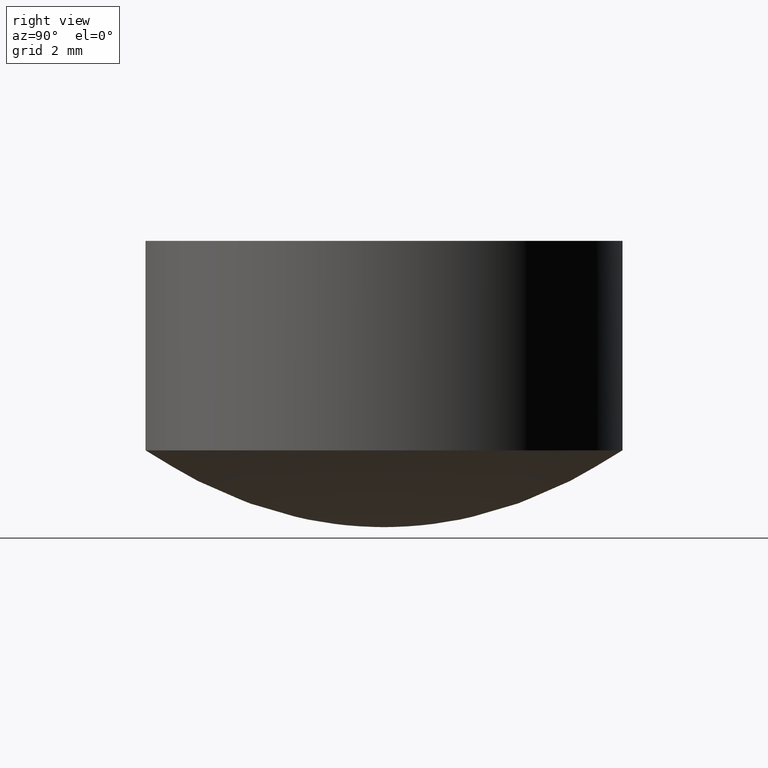
[diagram: clean part render]
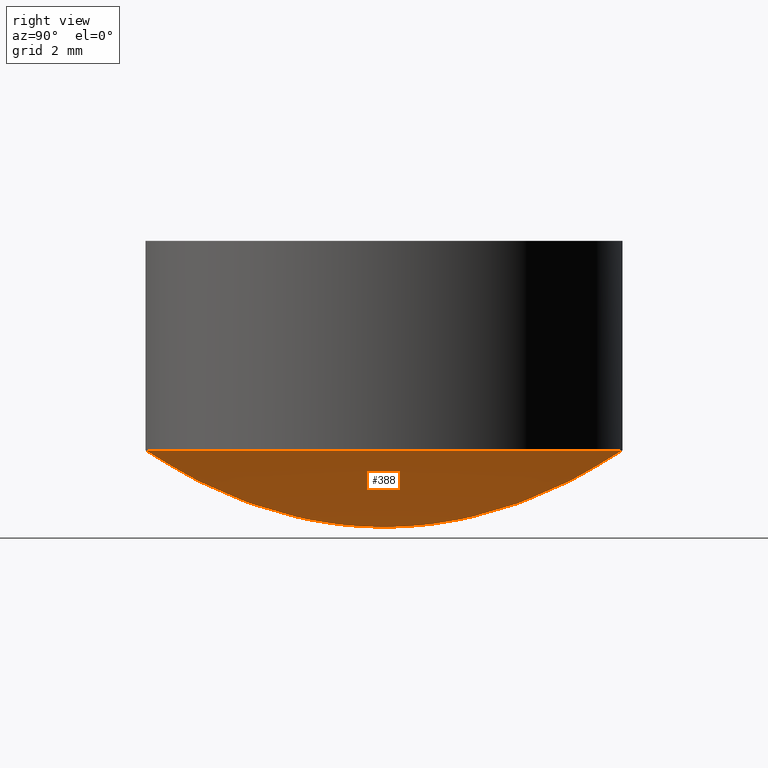
[diagram: same view with one face highlighted and labeled with its STEP entity id]
A machine part, right view. The second image highlights one B-rep face of the part: STEP entity #388.
In plain terms, the highlighted face is a freeform B-spline surface patch.
Its self-contained STEP definition (entity closure, byte-faithful):
#2 = CARTESIAN_POINT ( 'NONE',  ( 4.943235777808334573E-16, 2.018229166666670071, 0.2029295990211220091 ) ) ;
#3 = CARTESIAN_POINT ( 'NONE',  ( 0.000000000000000000, 5.403645833333329485, 1.490662127284529959 ) ) ;
#6 = CARTESIAN_POINT ( 'NONE',  ( -7.972960931948918898E-17, -0.6510416666666670737, 0.02085353383561979954 ) ) ;
#9 = CARTESIAN_POINT ( 'NONE',  ( 7.494583276031971660E-16, 3.059895833333330373, 0.4691095578617149875 ) ) ;
#10 = CARTESIAN_POINT ( 'NONE',  ( 0.000000000000000000, 5.533854166666669627, 1.565382453900790116 ) ) ;
#15 = CARTESIAN_POINT ( 'NONE',  ( 4.036458333333339255, -2.018229166666670071, 0.2029295990211220091 ) ) ;
#16 = CARTESIAN_POINT ( 'NONE',  ( 0.000000000000000000, 5.338541666666670515, 1.454036125696430037 ) ) ;
#19 = CARTESIAN_POINT ( 'NONE',  ( 5.989583333333338366, 2.994791666666669183, 0.4491825398135370628 ) ) ;
#20 = CARTESIAN_POINT ( 'NONE',  ( 0.000000000000000000, 4.427083333333329485, 0.9917192555910387952 ) ) ;
#23 = CARTESIAN_POINT ( 'NONE',  ( 4.557291666666658969, -2.278645833333330373, 0.2590134107874019764 ) ) ;
#24 = CARTESIAN_POINT ( 'NONE',  ( 0.000000000000000000, 1.041666666666670071, 0.05374797635312900113 ) ) ;
#26 = CARTESIAN_POINT ( 'NONE',  ( 11.84895833333333748, 5.924479166666667851, 1.801366859548939825 ) ) ;
#28 = CARTESIAN_POINT ( 'NONE',  ( 3.667562028696491871E-16, 1.497395833333329929, 0.1114140896328100067 ) ) ;
#29 = CARTESIAN_POINT ( 'NONE',  ( 0.000000000000000000, 0.06510416666666669905, 0.000000000000000000 ) ) ;
#34 = CARTESIAN_POINT ( 'NONE',  ( 1.211890061656235604E-15, 4.947916666666669627, 1.244444089591119962 ) ) ;
#38 = CARTESIAN_POINT ( 'NONE',  ( 9.505208333333337478, -4.752604166666670515, 1.146123052034490053 ) ) ;
#40 = CARTESIAN_POINT ( 'NONE',  ( 0.000000000000000000, 1.432291666666670071, 0.1019000922679149934 ) ) ;
#42 = CARTESIAN_POINT ( 'NONE',  ( -6.298639136239646090E-16, -5.143229166666670515, 1.347069312123280183 ) ) ;
#44 = CARTESIAN_POINT ( 'NONE',  ( -7.972960931948918898E-17, -0.6510416666666670737, 0.02085353383561979954 ) ) ;
#51 = CARTESIAN_POINT ( 'NONE',  ( -2.710806716862634373E-16, -2.213541666666669627, 0.2443439133051079626 ) ) ;
#57 = CARTESIAN_POINT ( 'NONE',  ( -1.514862577070297956E-16, -1.236979166666670071, 0.07591213951704720020 ) ) ;
#60 = EDGE_CURVE ( 'NONE', #142, #633, #707, .T. ) ;
#65 = CARTESIAN_POINT ( 'NONE',  ( 8.451338587865840991E-16, 3.450520833333330373, 0.5980296746302240507 ) ) ;
#66 = CARTESIAN_POINT ( 'NONE',  ( 12.23958333333333925, 6.119791666666668739, 1.926081686685339855 ) ) ;
#69 = CARTESIAN_POINT ( 'NONE',  ( -6.617557573517594316E-16, -5.403645833333329485, 1.490662127284529959 ) ) ;
#70 = CARTESIAN_POINT ( 'NONE',  ( 9.408093899699709336E-16, 3.841145833333329929, 0.7431461482547900843 ) ) ;
#72 = CARTESIAN_POINT ( 'NONE',  ( -3.747291638015985830E-16, -3.059895833333330373, 0.4691095578617149875 ) ) ;
#73 = CARTESIAN_POINT ( 'NONE',  ( 7.942708333333338366, -3.971354166666671404, 0.7951591232710990553 ) ) ;
#76 = CARTESIAN_POINT ( 'NONE',  ( 6.770833333333338366, 3.385416666666667851, 0.5754250918116350366 ) ) ;
#78 = CARTESIAN_POINT ( 'NONE',  ( 3.189184372779558068E-17, 0.1302083333333330095, 0.0006316536323980819585 ) ) ;
#85 = CARTESIAN_POINT ( 'NONE',  ( 2.232429060945694777E-16, 0.9114583333333330373, 0.04109109837064860160 ) ) ;
#88 = CARTESIAN_POINT ( 'NONE',  ( 3.645833333333338810, -1.822916666666670737, 0.1653948692137860166 ) ) ;
#89 = CARTESIAN_POINT ( 'NONE',  ( 0.000000000000000000, 2.994791666666670071, 0.4491825398135370073 ) ) ;
#93 = CARTESIAN_POINT ( 'NONE',  ( -7.574312885351464633E-16, -6.184895833333330373, 1.968657738656729883 ) ) ;
#94 = CARTESIAN_POINT ( 'NONE',  ( 1.302083333333334147, 0.6510416666666667407, 0.02085353383561979607 ) ) ;
#95 = CARTESIAN_POINT ( 'NONE',  ( 0.000000000000000000, 5.989583333333330373, 1.842436248617159933 ) ) ;
#97 = CARTESIAN_POINT ( 'NONE',  ( 1.822916666666666075, 0.9114583333333327042, 0.04109109837064859466 ) ) ;
#98 = CARTESIAN_POINT ( 'NONE',  ( -7.255394448073515421E-16, -5.924479166666669627, 1.801366859548940047 ) ) ;
#100 = CARTESIAN_POINT ( 'NONE',  ( -2.790536326182116006E-16, -2.278645833333329929, 0.2590134107874019764 ) ) ;
#101 = CARTESIAN_POINT ( 'NONE',  ( 0.000000000000000000, 4.752604166666669627, 1.146123052034490053 ) ) ;
#105 = CARTESIAN_POINT ( 'NONE',  ( 10.67708333333334103, 5.338541666666667851, 1.454036125696430037 ) ) ;
#107 = CARTESIAN_POINT ( 'NONE',  ( -3.508102810057518251E-16, -2.864583333333329929, 0.4106543168688750467 ) ) ;
#110 = CARTESIAN_POINT ( 'NONE',  ( 1.692708333333333703, -0.8463541666666671848, 0.03539781309837600198 ) ) ;
#112 = EDGE_LOOP ( 'NONE', ( #981, #201, #1059 ) ) ;
#115 = CARTESIAN_POINT ( 'NONE',  ( 1.323511514703518863E-15, 5.403645833333329485, 1.490662127284529959 ) ) ;
#119 = CARTESIAN_POINT ( 'NONE',  ( 1.179998217928438414E-15, 4.817708333333330373, 1.178419867277990196 ) ) ;
#122 = CARTESIAN_POINT ( 'NONE',  ( 0.000000000000000000, 0.9114583333333330373, 0.04109109837064860160 ) ) ;
#124 = CARTESIAN_POINT ( 'NONE',  ( 1.227835983520132029E-15, 5.013020833333330373, 1.278171498255870064 ) ) ;
#126 = CARTESIAN_POINT ( 'NONE',  ( -1.355403358431311023E-16, -1.106770833333329929, 0.06071156909582089978 ) ) ;
#127 = DIRECTION ( 'NONE',  ( 0.000000000000000000, 0.000000000000000000, 1.000000000000000000 ) ) ;
#128 = CARTESIAN_POINT ( 'NONE',  ( -6.378368745559128216E-16, -5.208333333333330373, 1.382239719112129839 ) ) ;
#134 = CARTESIAN_POINT ( 'NONE',  ( -1.355403358431311023E-16, -1.106770833333329929, 0.06071156909582089978 ) ) ;
#137 = CARTESIAN_POINT ( 'NONE',  ( -8.770257025143801790E-17, -0.7161458333333329263, 0.02527903084214990284 ) ) ;
#138 = CARTESIAN_POINT ( 'NONE',  ( -6.856746401476061403E-16, -5.598958333333329485, 1.603476781141630170 ) ) ;
#142 = VERTEX_POINT ( 'NONE', #884 ) ;
#144 = CARTESIAN_POINT ( 'NONE',  ( 0.000000000000000000, 0.000000000000000000, 0.000000000000000000 ) ) ;
#145 = CARTESIAN_POINT ( 'NONE',  ( -4.943235777808322740E-16, -4.036458333333330373, 0.8218521257202150432 ) ) ;
#149 = CARTESIAN_POINT ( 'NONE',  ( 9.727012336977683201E-16, 3.971354166666670071, 0.7951591232710989443 ) ) ;
#151 = CARTESIAN_POINT ( 'NONE',  ( -3.508102810057518251E-16, -2.864583333333329929, 0.4106543168688750467 ) ) ;
#154 = CARTESIAN_POINT ( 'NONE',  ( 8.463541666666658969, -4.231770833333331261, 0.9046987737912409733 ) ) ;
#157 = CARTESIAN_POINT ( 'NONE',  ( -3.189184372779570394E-17, -0.2604166666666670182, 0.003158548302291759938 ) ) ;
#160 = CARTESIAN_POINT ( 'NONE',  ( 8.770257025143813870E-16, 3.580729166666670071, 0.6445915719321290149 ) ) ;
#161 = CARTESIAN_POINT ( 'NONE',  ( 0.000000000000000000, 4.231770833333330373, 0.9046987737912409733 ) ) ;
#165 = CARTESIAN_POINT ( 'NONE',  ( 8.854166666666657193, -4.427083333333330373, 0.9917192555910389062 ) ) ;
#166 = CARTESIAN_POINT ( 'NONE',  ( 0.000000000000000000, 3.776041666666669627, 0.7178261748412130272 ) ) ;
#169 = CARTESIAN_POINT ( 'NONE',  ( 1.467024811478599509E-15, 5.989583333333330373, 1.842436248617159933 ) ) ;
#175 = CARTESIAN_POINT ( 'NONE',  ( -2.232429060945700200E-16, -1.822916666666670071, 0.1653948692137860166 ) ) ;
#179 = CARTESIAN_POINT ( 'NONE',  ( 0.5208333333333339255, -0.2604166666666670737, 0.003158548302291759938 ) ) ;
#180 = CARTESIAN_POINT ( 'NONE',  ( 1.692708333333333703, 0.8463541666666665186, 0.03539781309837600198 ) ) ;
#182 = CARTESIAN_POINT ( 'NONE',  ( 0.9114583333333338144, 0.4557291666666667407, 0.01010869919915239820 ) ) ;
#183 = CARTESIAN_POINT ( 'NONE',  ( -3.029725154140583585E-16, -2.473958333333330373, 0.3056288482151509611 ) ) ;
#188 = CARTESIAN_POINT ( 'NONE',  ( 12.36979166666665897, 6.184895833333328596, 1.968657738656729883 ) ) ;
#189 = CARTESIAN_POINT ( 'NONE',  ( 7.813501713309942566E-16, 3.190104166666669627, 0.5102978868124029566 ) ) ;
#193 = CARTESIAN_POINT ( 'NONE',  ( 6.380208333333338366, 3.190104166666667851, 0.5102978868124029566 ) ) ;
#199 = CARTESIAN_POINT ( 'NONE',  ( 10.41666666666665897, -5.208333333333331261, 1.382239719112129839 ) ) ;
#201 = ORIENTED_EDGE ( 'NONE', *, *, #60, .T. ) ;
#202 = CARTESIAN_POINT ( 'NONE',  ( 5.421613433725268746E-16, 2.213541666666669627, 0.2443439133051079626 ) ) ;
#205 = CARTESIAN_POINT ( 'NONE',  ( 10.28645833333333748, -5.143229166666670515, 1.347069312123280183 ) ) ;
#207 = CARTESIAN_POINT ( 'NONE',  ( -3.986480465974453286E-17, -0.3255208333333330373, 0.005053789343999089134 ) ) ;
#209 = CARTESIAN_POINT ( 'NONE',  ( 10.80729166666665719, -5.403645833333331261, 1.490662127284529959 ) ) ;
#211 = CARTESIAN_POINT ( 'NONE',  ( 1.594592186389783780E-16, 0.6510416666666670737, 0.02085353383561979954 ) ) ;
#212 = CARTESIAN_POINT ( 'NONE',  ( 3.986480465974465242E-16, 1.627604166666670071, 0.1317232941412340153 ) ) ;
#215 = CARTESIAN_POINT ( 'NONE',  ( -6.856746401476061403E-16, -5.598958333333329485, 1.603476781141630170 ) ) ;
#218 = CARTESIAN_POINT ( 'NONE',  ( 4.145939684613427030E-16, 1.692708333333329929, 0.1425185013666920020 ) ) ;
#222 = CARTESIAN_POINT ( 'NONE',  ( -4.464858121891388568E-16, -3.645833333333330373, 0.6685488870468468958 ) ) ;
#223 = CARTESIAN_POINT ( 'NONE',  ( 3.029725154140595911E-16, 1.236979166666670071, 0.07591213951704720020 ) ) ;
#227 = CARTESIAN_POINT ( 'NONE',  ( -4.225669293932920496E-16, -3.450520833333330373, 0.5980296746302240507 ) ) ;
#231 = CARTESIAN_POINT ( 'NONE',  ( -1.993240232987232621E-16, -1.627604166666670071, 0.1317232941412340153 ) ) ;
#235 = CARTESIAN_POINT ( 'NONE',  ( -5.899991089642192072E-16, -4.817708333333330373, 1.178419867277990196 ) ) ;
#237 = CARTESIAN_POINT ( 'NONE',  ( 0.000000000000000000, 0.000000000000000000, 0.000000000000000000 ) ) ;
#238 = CARTESIAN_POINT ( 'NONE',  ( 7.552083333333336590, -3.776041666666670515, 0.7178261748412130272 ) ) ;
#242 = CARTESIAN_POINT ( 'NONE',  ( 6.901041666666659857, 3.450520833333328596, 0.5980296746302240507 ) ) ;
#245 = CARTESIAN_POINT ( 'NONE',  ( 1.036484921153358163E-15, 4.231770833333330373, 0.9046987737912409733 ) ) ;
#249 = CARTESIAN_POINT ( 'NONE',  ( 8.723958333333341031, 4.361979166666668739, 0.9622474257860160751 ) ) ;
#250 = CARTESIAN_POINT ( 'NONE',  ( 0.000000000000000000, 3.385416666666669627, 0.5754250918116350366 ) ) ;
#254 = CARTESIAN_POINT ( 'NONE',  ( -5.341883824405776759E-16, -4.361979166666670515, 0.9622474257860159641 ) ) ;
#255 = CARTESIAN_POINT ( 'NONE',  ( 0.000000000000000000, 5.924479166666669627, 1.801366859548940047 ) ) ;
#260 = CARTESIAN_POINT ( 'NONE',  ( 4.166666666666660745, 2.083333333333329485, 0.2163020075082220106 ) ) ;
#261 = CARTESIAN_POINT ( 'NONE',  ( 0.000000000000000000, 1.692708333333329929, 0.1425185013666920020 ) ) ;
#266 = CARTESIAN_POINT ( 'NONE',  ( -2.072969842306713515E-16, -1.692708333333329929, 0.1425185013666920020 ) ) ;
#267 = CARTESIAN_POINT ( 'NONE',  ( 0.000000000000000000, 2.278645833333329929, 0.2590134107874019764 ) ) ;
#270 = CARTESIAN_POINT ( 'NONE',  ( 12.49999999999999822, -6.250000000000002665, 2.011993405105169774 ) ) ;
#271 = CARTESIAN_POINT ( 'NONE',  ( 5.989583333333338366, -2.994791666666670515, 0.4491825398135370628 ) ) ;
#272 = CARTESIAN_POINT ( 'NONE',  ( 0.000000000000000000, 4.166666666666670515, 0.8766219504956098696 ) ) ;
#274 = CARTESIAN_POINT ( 'NONE',  ( 1.754051405028760358E-16, 0.7161458333333329263, 0.02527903084214990284 ) ) ;
#275 = CARTESIAN_POINT ( 'NONE',  ( 11.45833333333333748, -5.729166666666671404, 1.681146561684840002 ) ) ;
#277 = CARTESIAN_POINT ( 'NONE',  ( 6.119791666666658969, -3.059895833333331705, 0.4691095578617149875 ) ) ;
#280 = CARTESIAN_POINT ( 'NONE',  ( -6.777016792156581248E-16, -5.533854166666669627, 1.565382453900790116 ) ) ;
#282 = CARTESIAN_POINT ( 'NONE',  ( 4.817708333333339255, -2.408854166666670071, 0.2896558781350230261 ) ) ;
#286 = CARTESIAN_POINT ( 'NONE',  ( 10.41666666666666075, 5.208333333333327708, 1.382239719112129839 ) ) ;
#289 = CARTESIAN_POINT ( 'NONE',  ( 3.255208333333339699, 1.627604166666669183, 0.1317232941412339875 ) ) ;
#290 = CARTESIAN_POINT ( 'NONE',  ( 0.000000000000000000, 1.497395833333329929, 0.1114140896328100067 ) ) ;
#292 = CARTESIAN_POINT ( 'NONE',  ( 9.635416666666658969, 4.817708333333326820, 1.178419867277989974 ) ) ;
#294 = CARTESIAN_POINT ( 'NONE',  ( -1.993240232987232621E-16, -1.627604166666670071, 0.1317232941412340153 ) ) ;
#298 = CARTESIAN_POINT ( 'NONE',  ( 11.06770833333333925, 5.533854166666666963, 1.565382453900790116 ) ) ;
#303 = CARTESIAN_POINT ( 'NONE',  ( -4.624317340530374514E-16, -3.776041666666669627, 0.7178261748412130272 ) ) ;
#304 = CARTESIAN_POINT ( 'NONE',  ( 2.604166666666659857, 1.302083333333329263, 0.08414911724075491151 ) ) ;
#310 = CARTESIAN_POINT ( 'NONE',  ( -4.863506168488841600E-16, -3.971354166666670071, 0.7951591232710989443 ) ) ;
#311 = CARTESIAN_POINT ( 'NONE',  ( 2.994791666666658969, -1.497395833333330595, 0.1114140896328100067 ) ) ;
#318 = CARTESIAN_POINT ( 'NONE',  ( 7.682291666666658969, 3.841145833333328152, 0.7431461482547900843 ) ) ;
#321 = B_SPLINE_CURVE_WITH_KNOTS ( 'NONE', 3,
 ( #684, #760, #423, #95, #255, #1004, #925, #354, #10, #3, #16, #859, #1023, #931, #748, #346, #101, #672, #772, #20, #581, #161, #272, #365, #678, #519, #166, #848, #508, #998, #250, #514, #1010, #502, #89, #574, #1084, #338, #1017, #920, #840, #267, #833, #417, #430, #666, #754, #261, #586, #290, #40, #1032, #689, #380, #24, #122, #779, #701, #954, #1028, #783, #965, #536, #803, #29, #797 ),
 .UNSPECIFIED., .F., .F.,
 ( 4, 2, 2, 2, 2, 2, 2, 2, 2, 2, 2, 2, 2, 2, 2, 2, 2, 2, 2, 2, 2, 2, 2, 2, 2, 2, 2, 2, 2, 2, 2, 2, 4 ),
 ( -1.000000000000000000, -0.9687500000000000000, -0.9375000000000000000, -0.9062500000000000000, -0.8750000000000000000, -0.8437500000000000000, -0.8125000000000000000, -0.7812500000000000000, -0.7500000000000000000, -0.7187500000000000000, -0.6875000000000000000, -0.6562500000000000000, -0.6250000000000000000, -0.5937500000000000000, -0.5625000000000000000, -0.5312500000000000000, -0.5000000000000000000, -0.4687500000000000000, -0.4375000000000000000, -0.4062500000000000000, -0.3750000000000000000, -0.3437500000000000000, -0.3125000000000000000, -0.2812500000000000000, -0.2500000000000000000, -0.2187500000000000000, -0.1875000000000000000, -0.1562500000000000000, -0.1250000000000000000, -0.09375000000000000000, -0.06250000000000000000, -0.03125000000000000000, 0.000000000000000000 ),
 .UNSPECIFIED. ) ;
#325 = CARTESIAN_POINT ( 'NONE',  ( 9.244791666666658969, -4.622395833333331261, 1.082947853520390025 ) ) ;
#327 = CARTESIAN_POINT ( 'NONE',  ( -5.820261480322710931E-16, -4.752604166666669627, 1.146123052034490053 ) ) ;
#328 = CARTESIAN_POINT ( 'NONE',  ( 7.161458333333340143, 3.580729166666668739, 0.6445915719321291260 ) ) ;
#330 = CARTESIAN_POINT ( 'NONE',  ( 9.505208333333339255, 4.752604166666666963, 1.146123052034490053 ) ) ;
#335 = CARTESIAN_POINT ( 'NONE',  ( 11.97916666666665719, -5.989583333333333037, 1.842436248617159933 ) ) ;
#337 = CARTESIAN_POINT ( 'NONE',  ( 6.510416666666658081, -3.255208333333330373, 0.5315591981719010040 ) ) ;
#338 = CARTESIAN_POINT ( 'NONE',  ( 0.000000000000000000, 2.669270833333330373, 0.3561685437619440120 ) ) ;
#341 = CARTESIAN_POINT ( 'NONE',  ( 11.97916666666666075, 5.989583333333327708, 1.842436248617159933 ) ) ;
#344 = CARTESIAN_POINT ( 'NONE',  ( 0.9114583333333337034, -0.4557291666666670737, 0.01010869919915239820 ) ) ;
#345 = CARTESIAN_POINT ( 'NONE',  ( 3.776041666666658969, -1.888020833333330151, 0.1774760299424359977 ) ) ;
#346 = CARTESIAN_POINT ( 'NONE',  ( 0.000000000000000000, 4.817708333333330373, 1.178419867277990196 ) ) ;
#349 = CARTESIAN_POINT ( 'NONE',  ( 1.302083333333333925, -0.6510416666666671848, 0.02085353383561979607 ) ) ;
#352 = CARTESIAN_POINT ( 'NONE',  ( 0.000000000000000000, 0.000000000000000000, 0.000000000000000000 ) ) ;
#353 = CARTESIAN_POINT ( 'NONE',  ( 4.464858121891400401E-16, 1.822916666666670071, 0.1653948692137860166 ) ) ;
#354 = CARTESIAN_POINT ( 'NONE',  ( 0.000000000000000000, 5.598958333333329485, 1.603476781141630170 ) ) ;
#358 = CARTESIAN_POINT ( 'NONE',  ( 6.059450308281167171E-16, 2.473958333333330373, 0.3056288482151509611 ) ) ;
#362 = CARTESIAN_POINT ( 'NONE',  ( -8.770257025143801790E-17, -0.7161458333333329263, 0.02527903084214990284 ) ) ;
#364 = CARTESIAN_POINT ( 'NONE',  ( 5.598958333333339255, 2.799479166666668295, 0.3920531115882679996 ) ) ;
#365 = CARTESIAN_POINT ( 'NONE',  ( 0.000000000000000000, 4.036458333333330373, 0.8218521257202150432 ) ) ;
#367 = CARTESIAN_POINT ( 'NONE',  ( -6.378368745559128216E-16, -5.208333333333330373, 1.382239719112129839 ) ) ;
#369 = CARTESIAN_POINT ( 'NONE',  ( -3.667562028696504690E-16, -2.994791666666670071, 0.4491825398135370073 ) ) ;
#372 = CARTESIAN_POINT ( 'NONE',  ( 2.213541666666659857, 1.106770833333329263, 0.06071156909582089284 ) ) ;
#376 = CARTESIAN_POINT ( 'NONE',  ( -5.899991089642192072E-16, -4.817708333333330373, 1.178419867277990196 ) ) ;
#379 = CARTESIAN_POINT ( 'NONE',  ( 0.6510416666666659635, -0.3255208333333330928, 0.005053789343999090002 ) ) ;
#380 = CARTESIAN_POINT ( 'NONE',  ( 0.000000000000000000, 1.106770833333329929, 0.06071156909582089978 ) ) ;
#382 = CARTESIAN_POINT ( 'NONE',  ( -7.095935229434529475E-16, -5.794270833333330373, 1.720722017432400053 ) ) ;
#383 = CARTESIAN_POINT ( 'NONE',  ( -3.029725154140583585E-16, -2.473958333333330373, 0.3056288482151509611 ) ) ;
#385 = CARTESIAN_POINT ( 'NONE',  ( -1.594592186389779034E-17, -0.1302083333333330095, 0.0006316536323980819585 ) ) ;
#387 = CARTESIAN_POINT ( 'NONE',  ( 2.604166666666659857, -1.302083333333330373, 0.08414911724075491151 ) ) ;
#388 = ADVANCED_FACE ( 'NONE', ( #936 ), #686, .T. ) ;
#393 = CARTESIAN_POINT ( 'NONE',  ( -1.036484921153359223E-16, -0.8463541666666670737, 0.03539781309837599504 ) ) ;
#395 = CARTESIAN_POINT ( 'NONE',  ( -5.421613433725257899E-16, -4.427083333333329485, 0.9917192555910387952 ) ) ;
#399 = CARTESIAN_POINT ( 'NONE',  ( -1.594592186389778603E-16, -1.302083333333329929, 0.08414911724075489763 ) ) ;
#405 = CARTESIAN_POINT ( 'NONE',  ( 1.132160452336744997E-15, 4.622395833333329485, 1.082947853520389803 ) ) ;
#411 = CARTESIAN_POINT ( 'NONE',  ( -6.298639136239646090E-16, -5.143229166666670515, 1.347069312123280183 ) ) ;
#412 = CARTESIAN_POINT ( 'NONE',  ( -4.863506168488841600E-16, -3.971354166666670071, 0.7951591232710989443 ) ) ;
#414 = CARTESIAN_POINT ( 'NONE',  ( 1.084322686745051580E-15, 4.427083333333329485, 0.9917192555910387952 ) ) ;
#416 = CARTESIAN_POINT ( 'NONE',  ( -5.660802261683724985E-16, -4.622395833333329485, 1.082947853520389803 ) ) ;
#417 = CARTESIAN_POINT ( 'NONE',  ( 0.000000000000000000, 2.083333333333330373, 0.2163020075082219829 ) ) ;
#422 = CARTESIAN_POINT ( 'NONE',  ( 4.947916666666658969, -2.473958333333330817, 0.3056288482151509056 ) ) ;
#423 = CARTESIAN_POINT ( 'NONE',  ( 0.000000000000000000, 6.119791666666670515, 1.926081686685339855 ) ) ;
#426 = CARTESIAN_POINT ( 'NONE',  ( 1.432291666666665853, 0.7161458333333325932, 0.02527903084214990284 ) ) ;
#429 = CARTESIAN_POINT ( 'NONE',  ( 7.972960931948905833E-16, 3.255208333333329929, 0.5315591981719010040 ) ) ;
#430 = CARTESIAN_POINT ( 'NONE',  ( 0.000000000000000000, 2.018229166666670071, 0.2029295990211220091 ) ) ;
#435 = CARTESIAN_POINT ( 'NONE',  ( 1.275673749111825446E-16, 0.5208333333333330373, 0.01326836802159780081 ) ) ;
#436 = CARTESIAN_POINT ( 'NONE',  ( 5.102694996447296854E-16, 2.083333333333330373, 0.2163020075082219829 ) ) ;
#442 = CARTESIAN_POINT ( 'NONE',  ( -3.428373200738036618E-16, -2.799479166666669627, 0.3920531115882679996 ) ) ;
#447 = CARTESIAN_POINT ( 'NONE',  ( 5.338541666666659857, -2.669270833333331261, 0.3561685437619440120 ) ) ;
#450 = CARTESIAN_POINT ( 'NONE',  ( 10.67708333333333925, -5.338541666666672292, 1.454036125696430037 ) ) ;
#452 = CARTESIAN_POINT ( 'NONE',  ( 2.994791666666659857, 1.497395833333329263, 0.1114140896328100067 ) ) ;
#455 = CARTESIAN_POINT ( 'NONE',  ( 10.02604166666666075, 5.013020833333327708, 1.278171498255870064 ) ) ;
#463 = CARTESIAN_POINT ( 'NONE',  ( 1.451078889614703084E-15, 5.924479166666669627, 1.801366859548940047 ) ) ;
#467 = CARTESIAN_POINT ( 'NONE',  ( 2.473958333333340143, 1.236979166666669405, 0.07591213951704720020 ) ) ;
#469 = CARTESIAN_POINT ( 'NONE',  ( 1.307565592839622832E-15, 5.338541666666670515, 1.454036125696430037 ) ) ;
#472 = CARTESIAN_POINT ( 'NONE',  ( -1.754051405028765288E-16, -1.432291666666670071, 0.1019000922679149934 ) ) ;
#477 = CARTESIAN_POINT ( 'NONE',  ( -6.777016792156581248E-16, -5.533854166666669627, 1.565382453900790116 ) ) ;
#483 = CARTESIAN_POINT ( 'NONE',  ( -2.471617888904167287E-16, -2.018229166666670071, 0.2029295990211220091 ) ) ;
#485 = CARTESIAN_POINT ( 'NONE',  ( -4.145939684613439356E-16, -3.385416666666669627, 0.5754250918116350366 ) ) ;
#488 = CARTESIAN_POINT ( 'NONE',  ( -1.116214530472847389E-16, -0.9114583333333330373, 0.04109109837064860160 ) ) ;
#491 = CARTESIAN_POINT ( 'NONE',  ( 8.072916666666658969, -4.036458333333331261, 0.8218521257202150432 ) ) ;
#495 = CARTESIAN_POINT ( 'NONE',  ( 7.942708333333340143, 3.971354166666668739, 0.7951591232710990553 ) ) ;
#497 = CARTESIAN_POINT ( 'NONE',  ( -3.986480465974452916E-16, -3.255208333333329929, 0.5315591981719010040 ) ) ;
#498 = CARTESIAN_POINT ( 'NONE',  ( 8.333333333333337478, -4.166666666666670515, 0.8766219504956099806 ) ) ;
#500 = EDGE_CURVE ( 'NONE', #142, #960, #1082, .T. ) ;
#501 = CARTESIAN_POINT ( 'NONE',  ( 6.901041666666658081, -3.450520833333331261, 0.5980296746302240507 ) ) ;
#502 = CARTESIAN_POINT ( 'NONE',  ( 0.000000000000000000, 3.059895833333330373, 0.4691095578617149875 ) ) ;
#504 = CARTESIAN_POINT ( 'NONE',  ( 6.378368745559140789E-17, 0.2604166666666670182, 0.003158548302291759938 ) ) ;
#508 = CARTESIAN_POINT ( 'NONE',  ( 0.000000000000000000, 3.580729166666670071, 0.6445915719321290149 ) ) ;
#513 = CARTESIAN_POINT ( 'NONE',  ( -2.710806716862634373E-16, -2.213541666666669627, 0.2443439133051079626 ) ) ;
#514 = CARTESIAN_POINT ( 'NONE',  ( 0.000000000000000000, 3.255208333333329929, 0.5315591981719010040 ) ) ;
#517 = CARTESIAN_POINT ( 'NONE',  ( 12.50000000000000000, 6.249999999999997335, 2.011993405105169774 ) ) ;
#518 = CARTESIAN_POINT ( 'NONE',  ( -2.312158670265180848E-16, -1.888020833333329929, 0.1774760299424359977 ) ) ;
#519 = CARTESIAN_POINT ( 'NONE',  ( 0.000000000000000000, 3.841145833333329929, 0.7431461482547900843 ) ) ;
#523 = CARTESIAN_POINT ( 'NONE',  ( 6.537827964198102329E-16, 2.669270833333330373, 0.3561685437619440120 ) ) ;
#526 = CARTESIAN_POINT ( 'NONE',  ( 11.19791666666665897, -5.598958333333332149, 1.603476781141630170 ) ) ;
#529 = CARTESIAN_POINT ( 'NONE',  ( -3.268913982099051165E-16, -2.669270833333330373, 0.3561685437619440120 ) ) ;
#532 = CARTESIAN_POINT ( 'NONE',  ( 1.259727827247929218E-15, 5.143229166666670515, 1.347069312123280183 ) ) ;
#534 = CARTESIAN_POINT ( 'NONE',  ( 2.213541666666658969, -1.106770833333329929, 0.06071156909582089284 ) ) ;
#535 = CARTESIAN_POINT ( 'NONE',  ( -2.551347498223648427E-16, -2.083333333333330373, 0.2163020075082219829 ) ) ;
#536 = CARTESIAN_POINT ( 'NONE',  ( 0.000000000000000000, 0.2604166666666670182, 0.003158548302291759938 ) ) ;
#538 = CARTESIAN_POINT ( 'NONE',  ( -6.139179917600660144E-16, -5.013020833333330373, 1.278171498255870064 ) ) ;
#542 = CARTESIAN_POINT ( 'NONE',  ( -3.189184372779570394E-17, -0.2604166666666670182, 0.003158548302291759938 ) ) ;
#544 = CARTESIAN_POINT ( 'NONE',  ( 2.864583333333339699, -1.432291666666670515, 0.1019000922679150073 ) ) ;
#548 = CARTESIAN_POINT ( 'NONE',  ( 10.80729166666665897, 5.403645833333326820, 1.490662127284529959 ) ) ;
#550 = CARTESIAN_POINT ( 'NONE',  ( -2.551347498223648427E-16, -2.083333333333330373, 0.2163020075082219829 ) ) ;
#554 = CARTESIAN_POINT ( 'NONE',  ( -7.972960931948916741E-18, -0.06510416666666669905, 0.000000000000000000 ) ) ;
#558 = CARTESIAN_POINT ( 'NONE',  ( 0.000000000000000000, 0.000000000000000000, 0.000000000000000000 ) ) ;
#560 = CARTESIAN_POINT ( 'NONE',  ( -2.232429060945700200E-16, -1.822916666666670071, 0.1653948692137860166 ) ) ;
#562 = CARTESIAN_POINT ( 'NONE',  ( 1.068376764881155352E-15, 4.361979166666670515, 0.9622474257860159641 ) ) ;
#565 = CARTESIAN_POINT ( 'NONE',  ( 0.000000000000000000, 0.000000000000000000, 0.000000000000000000 ) ) ;
#566 = CARTESIAN_POINT ( 'NONE',  ( 7.682291666666658081, -3.841145833333330817, 0.7431461482547900843 ) ) ;
#567 = CARTESIAN_POINT ( 'NONE',  ( -7.972960931948916741E-18, -0.06510416666666669905, 0.000000000000000000 ) ) ;
#569 = CARTESIAN_POINT ( 'NONE',  ( -3.428373200738036618E-16, -2.799479166666669627, 0.3920531115882679996 ) ) ;
#570 = CARTESIAN_POINT ( 'NONE',  ( 8.723958333333339255, -4.361979166666671404, 0.9622474257860160751 ) ) ;
#573 = CARTESIAN_POINT ( 'NONE',  ( -5.182424605766790813E-16, -4.231770833333330373, 0.9046987737912409733 ) ) ;
#574 = CARTESIAN_POINT ( 'NONE',  ( 0.000000000000000000, 2.864583333333329929, 0.4106543168688750467 ) ) ;
#580 = CARTESIAN_POINT ( 'NONE',  ( -5.102694996447308687E-16, -4.166666666666670515, 0.8766219504956098696 ) ) ;
#581 = CARTESIAN_POINT ( 'NONE',  ( 0.000000000000000000, 4.361979166666670515, 0.9622474257860159641 ) ) ;
#585 = CARTESIAN_POINT ( 'NONE',  ( -3.906750856654971283E-16, -3.190104166666669627, 0.5102978868124029566 ) ) ;
#586 = CARTESIAN_POINT ( 'NONE',  ( 0.000000000000000000, 1.627604166666670071, 0.1317232941412340153 ) ) ;
#593 = CARTESIAN_POINT ( 'NONE',  ( 6.380208333333337478, -3.190104166666670515, 0.5102978868124029566 ) ) ;
#597 = CARTESIAN_POINT ( 'NONE',  ( 12.36979166666665897, -6.184895833333332149, 1.968657738656729883 ) ) ;
#598 = CARTESIAN_POINT ( 'NONE',  ( 6.856746401476073235E-16, 2.799479166666669627, 0.3920531115882679996 ) ) ;
#603 = CARTESIAN_POINT ( 'NONE',  ( -3.747291638015985830E-16, -3.059895833333330373, 0.4691095578617149875 ) ) ;
#606 = CARTESIAN_POINT ( 'NONE',  ( 0.6510416666666660745, 0.3255208333333329263, 0.005053789343999090002 ) ) ;
#607 = CARTESIAN_POINT ( 'NONE',  ( 1.355403358431316250E-15, 5.533854166666669627, 1.565382453900790116 ) ) ;
#609 = CARTESIAN_POINT ( 'NONE',  ( 4.427083333333338366, -2.213541666666670515, 0.2443439133051079903 ) ) ;
#611 = CARTESIAN_POINT ( 'NONE',  ( 1.275673749111825643E-15, 5.208333333333330373, 1.382239719112129839 ) ) ;
#615 = CARTESIAN_POINT ( 'NONE',  ( 2.710806716862622047E-16, 1.106770833333329929, 0.06071156909582089978 ) ) ;
#618 = CARTESIAN_POINT ( 'NONE',  ( 1.371349280295212281E-15, 5.598958333333329485, 1.603476781141630170 ) ) ;
#622 = CARTESIAN_POINT ( 'NONE',  ( -6.059450308281178018E-16, -4.947916666666669627, 1.244444089591119962 ) ) ;
#624 = CARTESIAN_POINT ( 'NONE',  ( -1.833781014348245936E-16, -1.497395833333329929, 0.1114140896328100067 ) ) ;
#625 = CARTESIAN_POINT ( 'NONE',  ( 2.083333333333339699, -1.041666666666670293, 0.05374797635312900806 ) ) ;
#632 = CARTESIAN_POINT ( 'NONE',  ( 0.000000000000000000, 0.000000000000000000, 0.000000000000000000 ) ) ;
#633 = VERTEX_POINT ( 'NONE', #632 ) ;
#634 = CARTESIAN_POINT ( 'NONE',  ( -1.514862577070297956E-16, -1.236979166666670071, 0.07591213951704720020 ) ) ;
#640 = CARTESIAN_POINT ( 'NONE',  ( -4.385128512571906935E-16, -3.580729166666670071, 0.6445915719321290149 ) ) ;
#641 = CARTESIAN_POINT ( 'NONE',  ( 2.864583333333340143, 1.432291666666669405, 0.1019000922679150073 ) ) ;
#645 = CARTESIAN_POINT ( 'NONE',  ( -7.574312885351464633E-16, -6.184895833333330373, 1.968657738656729883 ) ) ;
#648 = CARTESIAN_POINT ( 'NONE',  ( 7.552083333333338366, 3.776041666666667851, 0.7178261748412130272 ) ) ;
#652 = CARTESIAN_POINT ( 'NONE',  ( -7.335124057392997547E-16, -5.989583333333330373, 1.842436248617159933 ) ) ;
#653 = CARTESIAN_POINT ( 'NONE',  ( 8.929716243782777136E-16, 3.645833333333330373, 0.6685488870468468958 ) ) ;
#655 = CARTESIAN_POINT ( 'NONE',  ( -4.704046949849854668E-16, -3.841145833333329929, 0.7431461482547900843 ) ) ;
#657 = CARTESIAN_POINT ( 'NONE',  ( -4.225669293932920496E-16, -3.450520833333330373, 0.5980296746302240507 ) ) ;
#665 = CARTESIAN_POINT ( 'NONE',  ( -5.581072652364243845E-16, -4.557291666666669627, 1.052069468829859966 ) ) ;
#666 = CARTESIAN_POINT ( 'NONE',  ( 0.000000000000000000, 1.888020833333329929, 0.1774760299424359977 ) ) ;
#671 = CARTESIAN_POINT ( 'NONE',  ( 3.776041666666658969, 1.888020833333329263, 0.1774760299424359977 ) ) ;
#672 = CARTESIAN_POINT ( 'NONE',  ( 0.000000000000000000, 4.622395833333329485, 1.082947853520389803 ) ) ;
#677 = CARTESIAN_POINT ( 'NONE',  ( 4.036458333333339255, 2.018229166666669183, 0.2029295990211220091 ) ) ;
#678 = CARTESIAN_POINT ( 'NONE',  ( 0.000000000000000000, 3.971354166666670071, 0.7951591232710989443 ) ) ;
#683 = CARTESIAN_POINT ( 'NONE',  ( 4.427083333333339255, 2.213541666666668295, 0.2443439133051079903 ) ) ;
#684 = CARTESIAN_POINT ( 'NONE',  ( 0.000000000000000000, 6.250000000000000000, 2.011993405105170218 ) ) ;
#686 =( BOUNDED_SURFACE ( )  B_SPLINE_SURFACE ( 3, 3, ( 
 ( #820, #270, #517, #852 ),
 ( #93, #597, #188, #857 ),
 ( #731, #1066, #66, #1073 ),
 ( #989, #335, #341, #169 ),
 ( #98, #745, #26, #463 ),
 ( #382, #956, #775, #696 ),
 ( #1036, #275, #962, #709 ),
 ( #215, #526, #967, #618 ),
 ( #280, #882, #298, #607 ),
 ( #951, #209, #548, #115 ),
 ( #863, #450, #105, #469 ),
 ( #367, #199, #286, #611 ),
 ( #42, #205, #872, #532 ),
 ( #538, #877, #455, #124 ),
 ( #622, #799, #786, #34 ),
 ( #376, #704, #292, #119 ),
 ( #792, #38, #330, #1072 ),
 ( #416, #325, #830, #405 ),
 ( #665, #916, #912, #988 ),
 ( #730, #165, #994, #414 ),
 ( #254, #570, #249, #562 ),
 ( #573, #154, #1065, #245 ),
 ( #580, #498, #924, #908 ),
 ( #145, #491, #739, #839 ),
 ( #412, #73, #495, #149 ),
 ( #997, #566, #318, #70 ),
 ( #734, #238, #648, #824 ),
 ( #919, #742, #819, #653 ),
 ( #992, #1079, #328, #160 ),
 ( #657, #501, #242, #65 ),
 ( #1076, #832, #76, #747 ),
 ( #1083, #337, #1003, #429 ),
 ( #585, #593, #193, #189 ),
 ( #603, #277, #1027, #9 ),
 ( #369, #271, #19, #1016 ),
 ( #107, #764, #875, #948 ),
 ( #442, #693, #364, #598 ),
 ( #529, #447, #759, #523 ),
 ( #688, #1031, #943, #938 ),
 ( #183, #422, #953, #358 ),
 ( #778, #282, #858, #868 ),
 ( #100, #23, #771, #753 ),
 ( #513, #609, #683, #202 ),
 ( #535, #930, #260, #436 ),
 ( #847, #15, #677, #2 ),
 ( #518, #345, #671, #1009 ),
 ( #175, #88, #1022, #353 ),
 ( #266, #853, #975, #218 ),
 ( #294, #723, #289, #212 ),
 ( #699, #311, #452, #28 ),
 ( #472, #544, #641, #982 ),
 ( #874, #387, #304, #796 ),
 ( #634, #1039, #467, #223 ),
 ( #134, #534, #372, #615 ),
 ( #1048, #625, #861, #862 ),
 ( #774, #871, #97, #85 ),
 ( #767, #110, #180, #1013 ),
 ( #362, #850, #426, #274 ),
 ( #6, #349, #94, #211 ),
 ( #795, #1038, #937, #435 ),
 ( #782, #344, #182, #958 ),
 ( #207, #379, #606, #1025 ),
 ( #157, #179, #922, #504 ),
 ( #756, #836, #1012, #78 ),
 ( #567, #926, #1033, #717 ),
 ( #352, #237, #565, #144 ) ),
 .UNSPECIFIED., .F., .F., .F. ) 
 B_SPLINE_SURFACE_WITH_KNOTS ( ( 4, 2, 2, 2, 2, 2, 2, 2, 2, 2, 2, 2, 2, 2, 2, 2, 2, 2, 2, 2, 2, 2, 2, 2, 2, 2, 2, 2, 2, 2, 2, 2, 4 ),
 ( 4, 4 ),
 ( -1.000000000000000000, -0.9687500000000000000, -0.9375000000000000000, -0.9062500000000000000, -0.8750000000000000000, -0.8437500000000000000, -0.8125000000000000000, -0.7812500000000000000, -0.7500000000000000000, -0.7187500000000000000, -0.6875000000000000000, -0.6562500000000000000, -0.6250000000000000000, -0.5937500000000000000, -0.5625000000000000000, -0.5312500000000000000, -0.5000000000000000000, -0.4687500000000000000, -0.4375000000000000000, -0.4062500000000000000, -0.3750000000000000000, -0.3437500000000000000, -0.3125000000000000000, -0.2812500000000000000, -0.2500000000000000000, -0.2187500000000000000, -0.1875000000000000000, -0.1562500000000000000, -0.1250000000000000000, -0.09375000000000000000, -0.06250000000000000000, -0.03125000000000000000, 0.000000000000000000 ),
 ( 0.000000000000000000, 1.000000000000000000 ),
 .UNSPECIFIED. ) 
 GEOMETRIC_REPRESENTATION_ITEM ( )  RATIONAL_B_SPLINE_SURFACE ( (
 ( 1.000000000000000000, 0.3333333333333334259, 0.3333333333333334259, 1.000000000000000000),
 ( 1.000000000000000000, 0.3333333333333334259, 0.3333333333333334259, 1.000000000000000000),
 ( 1.000000000000000000, 0.3333333333333334259, 0.3333333333333334259, 1.000000000000000000),
 ( 1.000000000000000000, 0.3333333333333334259, 0.3333333333333334259, 1.000000000000000000),
 ( 1.000000000000000000, 0.3333333333333334259, 0.3333333333333334259, 1.000000000000000000),
 ( 1.000000000000000000, 0.3333333333333334259, 0.3333333333333334259, 1.000000000000000000),
 ( 1.000000000000000000, 0.3333333333333334259, 0.3333333333333334259, 1.000000000000000000),
 ( 1.000000000000000000, 0.3333333333333334259, 0.3333333333333334259, 1.000000000000000000),
 ( 1.000000000000000000, 0.3333333333333334259, 0.3333333333333334259, 1.000000000000000000),
 ( 1.000000000000000000, 0.3333333333333334259, 0.3333333333333334259, 1.000000000000000000),
 ( 1.000000000000000000, 0.3333333333333334259, 0.3333333333333334259, 1.000000000000000000),
 ( 1.000000000000000000, 0.3333333333333334259, 0.3333333333333334259, 1.000000000000000000),
 ( 1.000000000000000000, 0.3333333333333334259, 0.3333333333333334259, 1.000000000000000000),
 ( 1.000000000000000000, 0.3333333333333334259, 0.3333333333333334259, 1.000000000000000000),
 ( 1.000000000000000000, 0.3333333333333334259, 0.3333333333333334259, 1.000000000000000000),
 ( 1.000000000000000000, 0.3333333333333334259, 0.3333333333333334259, 1.000000000000000000),
 ( 1.000000000000000000, 0.3333333333333334259, 0.3333333333333334259, 1.000000000000000000),
 ( 1.000000000000000000, 0.3333333333333334259, 0.3333333333333334259, 1.000000000000000000),
 ( 1.000000000000000000, 0.3333333333333334259, 0.3333333333333334259, 1.000000000000000000),
 ( 1.000000000000000000, 0.3333333333333334259, 0.3333333333333334259, 1.000000000000000000),
 ( 1.000000000000000000, 0.3333333333333334259, 0.3333333333333334259, 1.000000000000000000),
 ( 1.000000000000000000, 0.3333333333333334259, 0.3333333333333334259, 1.000000000000000000),
 ( 1.000000000000000000, 0.3333333333333334259, 0.3333333333333334259, 1.000000000000000000),
 ( 1.000000000000000000, 0.3333333333333334259, 0.3333333333333334259, 1.000000000000000000),
 ( 1.000000000000000000, 0.3333333333333334259, 0.3333333333333334259, 1.000000000000000000),
 ( 1.000000000000000000, 0.3333333333333334259, 0.3333333333333334259, 1.000000000000000000),
 ( 1.000000000000000000, 0.3333333333333334259, 0.3333333333333334259, 1.000000000000000000),
 ( 1.000000000000000000, 0.3333333333333334259, 0.3333333333333334259, 1.000000000000000000),
 ( 1.000000000000000000, 0.3333333333333334259, 0.3333333333333334259, 1.000000000000000000),
 ( 1.000000000000000000, 0.3333333333333334259, 0.3333333333333334259, 1.000000000000000000),
 ( 1.000000000000000000, 0.3333333333333334259, 0.3333333333333334259, 1.000000000000000000),
 ( 1.000000000000000000, 0.3333333333333334259, 0.3333333333333334259, 1.000000000000000000),
 ( 1.000000000000000000, 0.3333333333333334259, 0.3333333333333334259, 1.000000000000000000),
 ( 1.000000000000000000, 0.3333333333333334259, 0.3333333333333334259, 1.000000000000000000),
 ( 1.000000000000000000, 0.3333333333333334259, 0.3333333333333334259, 1.000000000000000000),
 ( 1.000000000000000000, 0.3333333333333334259, 0.3333333333333334259, 1.000000000000000000),
 ( 1.000000000000000000, 0.3333333333333334259, 0.3333333333333334259, 1.000000000000000000),
 ( 1.000000000000000000, 0.3333333333333334259, 0.3333333333333334259, 1.000000000000000000),
 ( 1.000000000000000000, 0.3333333333333334259, 0.3333333333333334259, 1.000000000000000000),
 ( 1.000000000000000000, 0.3333333333333334259, 0.3333333333333334259, 1.000000000000000000),
 ( 1.000000000000000000, 0.3333333333333334259, 0.3333333333333334259, 1.000000000000000000),
 ( 1.000000000000000000, 0.3333333333333334259, 0.3333333333333334259, 1.000000000000000000),
 ( 1.000000000000000000, 0.3333333333333334259, 0.3333333333333334259, 1.000000000000000000),
 ( 1.000000000000000000, 0.3333333333333334259, 0.3333333333333334259, 1.000000000000000000),
 ( 1.000000000000000000, 0.3333333333333334259, 0.3333333333333334259, 1.000000000000000000),
 ( 1.000000000000000000, 0.3333333333333334259, 0.3333333333333334259, 1.000000000000000000),
 ( 1.000000000000000000, 0.3333333333333334259, 0.3333333333333334259, 1.000000000000000000),
 ( 1.000000000000000000, 0.3333333333333334259, 0.3333333333333334259, 1.000000000000000000),
 ( 1.000000000000000000, 0.3333333333333334259, 0.3333333333333334259, 1.000000000000000000),
 ( 1.000000000000000000, 0.3333333333333334259, 0.3333333333333334259, 1.000000000000000000),
 ( 1.000000000000000000, 0.3333333333333334259, 0.3333333333333334259, 1.000000000000000000),
 ( 1.000000000000000000, 0.3333333333333334259, 0.3333333333333334259, 1.000000000000000000),
 ( 1.000000000000000000, 0.3333333333333334259, 0.3333333333333334259, 1.000000000000000000),
 ( 1.000000000000000000, 0.3333333333333334259, 0.3333333333333334259, 1.000000000000000000),
 ( 1.000000000000000000, 0.3333333333333334259, 0.3333333333333334259, 1.000000000000000000),
 ( 1.000000000000000000, 0.3333333333333334259, 0.3333333333333334259, 1.000000000000000000),
 ( 1.000000000000000000, 0.3333333333333334259, 0.3333333333333334259, 1.000000000000000000),
 ( 1.000000000000000000, 0.3333333333333334259, 0.3333333333333334259, 1.000000000000000000),
 ( 1.000000000000000000, 0.3333333333333334259, 0.3333333333333334259, 1.000000000000000000),
 ( 1.000000000000000000, 0.3333333333333334259, 0.3333333333333334259, 1.000000000000000000),
 ( 1.000000000000000000, 0.3333333333333334259, 0.3333333333333334259, 1.000000000000000000),
 ( 1.000000000000000000, 0.3333333333333334259, 0.3333333333333334259, 1.000000000000000000),
 ( 1.000000000000000000, 0.3333333333333334259, 0.3333333333333334259, 1.000000000000000000),
 ( 1.000000000000000000, 0.3333333333333334259, 0.3333333333333334259, 1.000000000000000000),
 ( 1.000000000000000000, 0.3333333333333334259, 0.3333333333333334259, 1.000000000000000000),
 ( 1.000000000000000000, 0.3333333333333334259, 0.3333333333333334259, 1.000000000000000000) ) ) 
 REPRESENTATION_ITEM ( '' )  SURFACE ( )  );
#688 = CARTESIAN_POINT ( 'NONE',  ( -3.189184372779570025E-16, -2.604166666666670071, 0.3388851808965820389 ) ) ;
#689 = CARTESIAN_POINT ( 'NONE',  ( 0.000000000000000000, 1.236979166666670071, 0.07591213951704720020 ) ) ;
#693 = CARTESIAN_POINT ( 'NONE',  ( 5.598958333333338366, -2.799479166666670515, 0.3920531115882679996 ) ) ;
#696 = CARTESIAN_POINT ( 'NONE',  ( 1.419187045886905895E-15, 5.794270833333330373, 1.720722017432400053 ) ) ;
#699 = CARTESIAN_POINT ( 'NONE',  ( -1.833781014348245936E-16, -1.497395833333329929, 0.1114140896328100067 ) ) ;
#701 = CARTESIAN_POINT ( 'NONE',  ( 0.000000000000000000, 0.7161458333333329263, 0.02527903084214990284 ) ) ;
#704 = CARTESIAN_POINT ( 'NONE',  ( 9.635416666666657193, -4.817708333333331261, 1.178419867277989974 ) ) ;
#707 = B_SPLINE_CURVE_WITH_KNOTS ( 'NONE', 3,
 ( #1069, #645, #896, #652, #822, #974, #901, #138, #477, #69, #991, #128, #411, #906, #985, #235, #327, #738, #807, #395, #802, #1075, #1052, #722, #310, #655, #303, #222, #640, #227, #485, #497, #915, #72, #829, #151, #569, #714, #806, #383, #1067, #990, #51, #550, #483, #710, #560, #732, #231, #624, #727, #399, #57, #126, #1046, #488, #393, #137, #44, #899, #904, #816, #542, #385, #554, #558 ),
 .UNSPECIFIED., .F., .F.,
 ( 4, 2, 2, 2, 2, 2, 2, 2, 2, 2, 2, 2, 2, 2, 2, 2, 2, 2, 2, 2, 2, 2, 2, 2, 2, 2, 2, 2, 2, 2, 2, 2, 4 ),
 ( -1.000000000000000000, -0.9687500000000000000, -0.9375000000000000000, -0.9062500000000000000, -0.8750000000000000000, -0.8437500000000000000, -0.8125000000000000000, -0.7812500000000000000, -0.7500000000000000000, -0.7187500000000000000, -0.6875000000000000000, -0.6562500000000000000, -0.6250000000000000000, -0.5937500000000000000, -0.5625000000000000000, -0.5312500000000000000, -0.5000000000000000000, -0.4687500000000000000, -0.4375000000000000000, -0.4062500000000000000, -0.3750000000000000000, -0.3437500000000000000, -0.3125000000000000000, -0.2812500000000000000, -0.2500000000000000000, -0.2187500000000000000, -0.1875000000000000000, -0.1562500000000000000, -0.1250000000000000000, -0.09375000000000000000, -0.06250000000000000000, -0.03125000000000000000, 0.000000000000000000 ),
 .UNSPECIFIED. ) ;
#709 = CARTESIAN_POINT ( 'NONE',  ( 1.403241124023009470E-15, 5.729166666666669627, 1.681146561684840002 ) ) ;
#710 = CARTESIAN_POINT ( 'NONE',  ( -2.312158670265180848E-16, -1.888020833333329929, 0.1774760299424359977 ) ) ;
#714 = CARTESIAN_POINT ( 'NONE',  ( -3.268913982099051165E-16, -2.669270833333330373, 0.3561685437619440120 ) ) ;
#717 = CARTESIAN_POINT ( 'NONE',  ( 1.594592186389783348E-17, 0.06510416666666669905, 0.000000000000000000 ) ) ;
#722 = CARTESIAN_POINT ( 'NONE',  ( -4.943235777808322740E-16, -4.036458333333330373, 0.8218521257202150432 ) ) ;
#723 = CARTESIAN_POINT ( 'NONE',  ( 3.255208333333338810, -1.627604166666670515, 0.1317232941412339875 ) ) ;
#727 = CARTESIAN_POINT ( 'NONE',  ( -1.754051405028765288E-16, -1.432291666666670071, 0.1019000922679149934 ) ) ;
#730 = CARTESIAN_POINT ( 'NONE',  ( -5.421613433725257899E-16, -4.427083333333329485, 0.9917192555910387952 ) ) ;
#731 = CARTESIAN_POINT ( 'NONE',  ( -7.494583276031983493E-16, -6.119791666666670515, 1.926081686685339855 ) ) ;
#732 = CARTESIAN_POINT ( 'NONE',  ( -2.072969842306713515E-16, -1.692708333333329929, 0.1425185013666920020 ) ) ;
#734 = CARTESIAN_POINT ( 'NONE',  ( -4.624317340530374514E-16, -3.776041666666669627, 0.7178261748412130272 ) ) ;
#736 = CARTESIAN_POINT ( 'NONE',  ( 0.000000000000000000, 0.000000000000000000, 2.011993405105170218 ) ) ;
#738 = CARTESIAN_POINT ( 'NONE',  ( -5.660802261683724985E-16, -4.622395833333329485, 1.082947853520389803 ) ) ;
#739 = CARTESIAN_POINT ( 'NONE',  ( 8.072916666666660745, 4.036458333333328596, 0.8218521257202150432 ) ) ;
#742 = CARTESIAN_POINT ( 'NONE',  ( 7.291666666666658969, -3.645833333333331261, 0.6685488870468468958 ) ) ;
#745 = CARTESIAN_POINT ( 'NONE',  ( 11.84895833333333748, -5.924479166666671404, 1.801366859548939825 ) ) ;
#747 = CARTESIAN_POINT ( 'NONE',  ( 8.291879369226878711E-16, 3.385416666666669627, 0.5754250918116350366 ) ) ;
#748 = CARTESIAN_POINT ( 'NONE',  ( 0.000000000000000000, 4.947916666666669627, 1.244444089591119962 ) ) ;
#753 = CARTESIAN_POINT ( 'NONE',  ( 5.581072652364232012E-16, 2.278645833333329929, 0.2590134107874019764 ) ) ;
#754 = CARTESIAN_POINT ( 'NONE',  ( 0.000000000000000000, 1.822916666666670071, 0.1653948692137860166 ) ) ;
#756 = CARTESIAN_POINT ( 'NONE',  ( -1.594592186389779034E-17, -0.1302083333333330095, 0.0006316536323980819585 ) ) ;
#759 = CARTESIAN_POINT ( 'NONE',  ( 5.338541666666660745, 2.669270833333329040, 0.3561685437619440120 ) ) ;
#760 = CARTESIAN_POINT ( 'NONE',  ( 0.000000000000000000, 6.184895833333330373, 1.968657738656729883 ) ) ;
#764 = CARTESIAN_POINT ( 'NONE',  ( 5.729166666666658969, -2.864583333333330817, 0.4106543168688750467 ) ) ;
#765 = CARTESIAN_POINT ( 'NONE',  ( 0.000000000000000000, 6.250000000000000000, 2.011993405105170218 ) ) ;
#767 = CARTESIAN_POINT ( 'NONE',  ( -1.036484921153359223E-16, -0.8463541666666670737, 0.03539781309837599504 ) ) ;
#771 = CARTESIAN_POINT ( 'NONE',  ( 4.557291666666660745, 2.278645833333329040, 0.2590134107874019764 ) ) ;
#772 = CARTESIAN_POINT ( 'NONE',  ( 0.000000000000000000, 4.557291666666669627, 1.052069468829859966 ) ) ;
#774 = CARTESIAN_POINT ( 'NONE',  ( -1.116214530472847389E-16, -0.9114583333333330373, 0.04109109837064860160 ) ) ;
#775 = CARTESIAN_POINT ( 'NONE',  ( 11.58854166666665897, 5.794270833333326820, 1.720722017432400053 ) ) ;
#778 = CARTESIAN_POINT ( 'NONE',  ( -2.949995544821101952E-16, -2.408854166666669627, 0.2896558781350230261 ) ) ;
#779 = CARTESIAN_POINT ( 'NONE',  ( 0.000000000000000000, 0.8463541666666670737, 0.03539781309837599504 ) ) ;
#782 = CARTESIAN_POINT ( 'NONE',  ( -5.581072652364243106E-17, -0.4557291666666670182, 0.01010869919915239820 ) ) ;
#783 = CARTESIAN_POINT ( 'NONE',  ( 0.000000000000000000, 0.4557291666666670182, 0.01010869919915239820 ) ) ;
#786 = CARTESIAN_POINT ( 'NONE',  ( 9.895833333333339255, 4.947916666666666963, 1.244444089591119962 ) ) ;
#788 = AXIS2_PLACEMENT_3D ( 'NONE', #736, #127, #1042 ) ;
#792 = CARTESIAN_POINT ( 'NONE',  ( -5.820261480322710931E-16, -4.752604166666669627, 1.146123052034490053 ) ) ;
#795 = CARTESIAN_POINT ( 'NONE',  ( -6.378368745559127230E-17, -0.5208333333333330373, 0.01326836802159780081 ) ) ;
#796 = CARTESIAN_POINT ( 'NONE',  ( 3.189184372779557206E-16, 1.302083333333329929, 0.08414911724075489763 ) ) ;
#797 = CARTESIAN_POINT ( 'NONE',  ( 0.000000000000000000, 0.000000000000000000, 0.000000000000000000 ) ) ;
#799 = CARTESIAN_POINT ( 'NONE',  ( 9.895833333333339255, -4.947916666666670515, 1.244444089591119962 ) ) ;
#802 = CARTESIAN_POINT ( 'NONE',  ( -5.341883824405776759E-16, -4.361979166666670515, 0.9622474257860159641 ) ) ;
#803 = CARTESIAN_POINT ( 'NONE',  ( 0.000000000000000000, 0.1302083333333330095, 0.0006316536323980819585 ) ) ;
#806 = CARTESIAN_POINT ( 'NONE',  ( -3.189184372779570025E-16, -2.604166666666670071, 0.3388851808965820389 ) ) ;
#807 = CARTESIAN_POINT ( 'NONE',  ( -5.581072652364243845E-16, -4.557291666666669627, 1.052069468829859966 ) ) ;
#816 = CARTESIAN_POINT ( 'NONE',  ( -3.986480465974453286E-17, -0.3255208333333330373, 0.005053789343999089134 ) ) ;
#819 = CARTESIAN_POINT ( 'NONE',  ( 7.291666666666659857, 3.645833333333328596, 0.6685488870468468958 ) ) ;
#820 = CARTESIAN_POINT ( 'NONE',  ( -7.654042494670957606E-16, -6.250000000000000000, 2.011993405105170218 ) ) ;
#822 = CARTESIAN_POINT ( 'NONE',  ( -7.255394448073515421E-16, -5.924479166666669627, 1.801366859548940047 ) ) ;
#824 = CARTESIAN_POINT ( 'NONE',  ( 9.248634681060749028E-16, 3.776041666666669627, 0.7178261748412130272 ) ) ;
#829 = CARTESIAN_POINT ( 'NONE',  ( -3.667562028696504690E-16, -2.994791666666670071, 0.4491825398135370073 ) ) ;
#830 = CARTESIAN_POINT ( 'NONE',  ( 9.244791666666660745, 4.622395833333327708, 1.082947853520390025 ) ) ;
#832 = CARTESIAN_POINT ( 'NONE',  ( 6.770833333333337478, -3.385416666666670515, 0.5754250918116350366 ) ) ;
#833 = CARTESIAN_POINT ( 'NONE',  ( 0.000000000000000000, 2.213541666666669627, 0.2443439133051079626 ) ) ;
#836 = CARTESIAN_POINT ( 'NONE',  ( 0.2604166666666659635, -0.1302083333333330373, 0.0006316536323980819585 ) ) ;
#839 = CARTESIAN_POINT ( 'NONE',  ( 9.886471555616645481E-16, 4.036458333333330373, 0.8218521257202150432 ) ) ;
#840 = CARTESIAN_POINT ( 'NONE',  ( 0.000000000000000000, 2.408854166666669627, 0.2896558781350230261 ) ) ;
#847 = CARTESIAN_POINT ( 'NONE',  ( -2.471617888904167287E-16, -2.018229166666670071, 0.2029295990211220091 ) ) ;
#848 = CARTESIAN_POINT ( 'NONE',  ( 0.000000000000000000, 3.645833333333330373, 0.6685488870468468958 ) ) ;
#850 = CARTESIAN_POINT ( 'NONE',  ( 1.432291666666665630, -0.7161458333333331483, 0.02527903084214990284 ) ) ;
#852 = CARTESIAN_POINT ( 'NONE',  ( 1.530808498934191521E-15, 6.250000000000000000, 2.011993405105170218 ) ) ;
#853 = CARTESIAN_POINT ( 'NONE',  ( 3.385416666666658525, -1.692708333333330373, 0.1425185013666920020 ) ) ;
#857 = CARTESIAN_POINT ( 'NONE',  ( 1.514862577070292927E-15, 6.184895833333330373, 1.968657738656729883 ) ) ;
#858 = CARTESIAN_POINT ( 'NONE',  ( 4.817708333333339255, 2.408854166666668295, 0.2896558781350230261 ) ) ;
#859 = CARTESIAN_POINT ( 'NONE',  ( 0.000000000000000000, 5.208333333333330373, 1.382239719112129839 ) ) ;
#861 = CARTESIAN_POINT ( 'NONE',  ( 2.083333333333340143, 1.041666666666669627, 0.05374797635312900806 ) ) ;
#862 = CARTESIAN_POINT ( 'NONE',  ( 2.551347498223661246E-16, 1.041666666666670071, 0.05374797635312900113 ) ) ;
#863 = CARTESIAN_POINT ( 'NONE',  ( -6.537827964198114162E-16, -5.338541666666670515, 1.454036125696430037 ) ) ;
#868 = CARTESIAN_POINT ( 'NONE',  ( 5.899991089642203904E-16, 2.408854166666669627, 0.2896558781350230261 ) ) ;
#871 = CARTESIAN_POINT ( 'NONE',  ( 1.822916666666665630, -0.9114583333333333703, 0.04109109837064859466 ) ) ;
#872 = CARTESIAN_POINT ( 'NONE',  ( 10.28645833333334103, 5.143229166666667851, 1.347069312123280183 ) ) ;
#874 = CARTESIAN_POINT ( 'NONE',  ( -1.594592186389778603E-16, -1.302083333333329929, 0.08414911724075489763 ) ) ;
#875 = CARTESIAN_POINT ( 'NONE',  ( 5.729166666666659857, 2.864583333333329040, 0.4106543168688750467 ) ) ;
#877 = CARTESIAN_POINT ( 'NONE',  ( 10.02604166666665897, -5.013020833333331261, 1.278171498255870064 ) ) ;
#882 = CARTESIAN_POINT ( 'NONE',  ( 11.06770833333333925, -5.533854166666671404, 1.565382453900790116 ) ) ;
#884 = CARTESIAN_POINT ( 'NONE',  ( 7.654042494670957606E-16, -6.250000000000000000, 2.011993405105170218 ) ) ;
#896 = CARTESIAN_POINT ( 'NONE',  ( -7.494583276031983493E-16, -6.119791666666670515, 1.926081686685339855 ) ) ;
#899 = CARTESIAN_POINT ( 'NONE',  ( -6.378368745559127230E-17, -0.5208333333333330373, 0.01326836802159780081 ) ) ;
#901 = CARTESIAN_POINT ( 'NONE',  ( -7.016205620115047349E-16, -5.729166666666669627, 1.681146561684840002 ) ) ;
#904 = CARTESIAN_POINT ( 'NONE',  ( -5.581072652364243106E-17, -0.4557291666666670182, 0.01010869919915239820 ) ) ;
#906 = CARTESIAN_POINT ( 'NONE',  ( -6.139179917600660144E-16, -5.013020833333330373, 1.278171498255870064 ) ) ;
#908 = CARTESIAN_POINT ( 'NONE',  ( 1.020538999289461737E-15, 4.166666666666670515, 0.8766219504956098696 ) ) ;
#912 = CARTESIAN_POINT ( 'NONE',  ( 9.114583333333339255, 4.557291666666666963, 1.052069468829859966 ) ) ;
#915 = CARTESIAN_POINT ( 'NONE',  ( -3.906750856654971283E-16, -3.190104166666669627, 0.5102978868124029566 ) ) ;
#916 = CARTESIAN_POINT ( 'NONE',  ( 9.114583333333337478, -4.557291666666670515, 1.052069468829859966 ) ) ;
#919 = CARTESIAN_POINT ( 'NONE',  ( -4.464858121891388568E-16, -3.645833333333330373, 0.6685488870468468958 ) ) ;
#920 = CARTESIAN_POINT ( 'NONE',  ( 0.000000000000000000, 2.473958333333330373, 0.3056288482151509611 ) ) ;
#922 = CARTESIAN_POINT ( 'NONE',  ( 0.5208333333333340365, 0.2604166666666669072, 0.003158548302291759938 ) ) ;
#924 = CARTESIAN_POINT ( 'NONE',  ( 8.333333333333339255, 4.166666666666667851, 0.8766219504956099806 ) ) ;
#925 = CARTESIAN_POINT ( 'NONE',  ( 0.000000000000000000, 5.729166666666669627, 1.681146561684840002 ) ) ;
#926 = CARTESIAN_POINT ( 'NONE',  ( 0.1302083333333333426, -0.06510416666666669905, 0.000000000000000000 ) ) ;
#930 = CARTESIAN_POINT ( 'NONE',  ( 4.166666666666659857, -2.083333333333330817, 0.2163020075082220106 ) ) ;
#931 = CARTESIAN_POINT ( 'NONE',  ( 0.000000000000000000, 5.013020833333330373, 1.278171498255870064 ) ) ;
#936 = FACE_OUTER_BOUND ( 'NONE', #112, .T. ) ;
#937 = CARTESIAN_POINT ( 'NONE',  ( 1.041666666666666075, 0.5208333333333328152, 0.01326836802159780254 ) ) ;
#938 = CARTESIAN_POINT ( 'NONE',  ( 6.378368745559140049E-16, 2.604166666666670071, 0.3388851808965820389 ) ) ;
#943 = CARTESIAN_POINT ( 'NONE',  ( 5.208333333333340143, 2.604166666666668739, 0.3388851808965820389 ) ) ;
#948 = CARTESIAN_POINT ( 'NONE',  ( 7.016205620115036502E-16, 2.864583333333329929, 0.4106543168688750467 ) ) ;
#951 = CARTESIAN_POINT ( 'NONE',  ( -6.617557573517594316E-16, -5.403645833333329485, 1.490662127284529959 ) ) ;
#953 = CARTESIAN_POINT ( 'NONE',  ( 4.947916666666659857, 2.473958333333328596, 0.3056288482151509056 ) ) ;
#954 = CARTESIAN_POINT ( 'NONE',  ( 0.000000000000000000, 0.6510416666666670737, 0.02085353383561979954 ) ) ;
#956 = CARTESIAN_POINT ( 'NONE',  ( 11.58854166666665897, -5.794270833333332149, 1.720722017432400053 ) ) ;
#958 = CARTESIAN_POINT ( 'NONE',  ( 1.116214530472848621E-16, 0.4557291666666670182, 0.01010869919915239820 ) ) ;
#960 = VERTEX_POINT ( 'NONE', #765 ) ;
#962 = CARTESIAN_POINT ( 'NONE',  ( 11.45833333333333925, 5.729166666666666963, 1.681146561684840002 ) ) ;
#965 = CARTESIAN_POINT ( 'NONE',  ( 0.000000000000000000, 0.3255208333333330373, 0.005053789343999089134 ) ) ;
#967 = CARTESIAN_POINT ( 'NONE',  ( 11.19791666666666075, 5.598958333333327708, 1.603476781141630170 ) ) ;
#974 = CARTESIAN_POINT ( 'NONE',  ( -7.095935229434529475E-16, -5.794270833333330373, 1.720722017432400053 ) ) ;
#975 = CARTESIAN_POINT ( 'NONE',  ( 3.385416666666659413, 1.692708333333329040, 0.1425185013666920020 ) ) ;
#981 = ORIENTED_EDGE ( 'NONE', *, *, #500, .F. ) ;
#982 = CARTESIAN_POINT ( 'NONE',  ( 3.508102810057530577E-16, 1.432291666666670071, 0.1019000922679149934 ) ) ;
#985 = CARTESIAN_POINT ( 'NONE',  ( -6.059450308281178018E-16, -4.947916666666669627, 1.244444089591119962 ) ) ;
#988 = CARTESIAN_POINT ( 'NONE',  ( 1.116214530472848769E-15, 4.557291666666669627, 1.052069468829859966 ) ) ;
#989 = CARTESIAN_POINT ( 'NONE',  ( -7.335124057392997547E-16, -5.989583333333330373, 1.842436248617159933 ) ) ;
#990 = CARTESIAN_POINT ( 'NONE',  ( -2.790536326182116006E-16, -2.278645833333329929, 0.2590134107874019764 ) ) ;
#991 = CARTESIAN_POINT ( 'NONE',  ( -6.537827964198114162E-16, -5.338541666666670515, 1.454036125696430037 ) ) ;
#992 = CARTESIAN_POINT ( 'NONE',  ( -4.385128512571906935E-16, -3.580729166666670071, 0.6445915719321290149 ) ) ;
#994 = CARTESIAN_POINT ( 'NONE',  ( 8.854166666666660745, 4.427083333333327708, 0.9917192555910389062 ) ) ;
#997 = CARTESIAN_POINT ( 'NONE',  ( -4.704046949849854668E-16, -3.841145833333329929, 0.7431461482547900843 ) ) ;
#998 = CARTESIAN_POINT ( 'NONE',  ( 0.000000000000000000, 3.450520833333330373, 0.5980296746302240507 ) ) ;
#1003 = CARTESIAN_POINT ( 'NONE',  ( 6.510416666666658081, 3.255208333333327708, 0.5315591981719010040 ) ) ;
#1004 = CARTESIAN_POINT ( 'NONE',  ( 0.000000000000000000, 5.794270833333330373, 1.720722017432400053 ) ) ;
#1009 = CARTESIAN_POINT ( 'NONE',  ( 4.624317340530361695E-16, 1.888020833333329929, 0.1774760299424359977 ) ) ;
#1010 = CARTESIAN_POINT ( 'NONE',  ( 0.000000000000000000, 3.190104166666669627, 0.5102978868124029566 ) ) ;
#1012 = CARTESIAN_POINT ( 'NONE',  ( 0.2604166666666660190, 0.1302083333333329540, 0.0006316536323980819585 ) ) ;
#1013 = CARTESIAN_POINT ( 'NONE',  ( 2.072969842306718445E-16, 0.8463541666666670737, 0.03539781309837599504 ) ) ;
#1016 = CARTESIAN_POINT ( 'NONE',  ( 7.335124057393009380E-16, 2.994791666666670071, 0.4491825398135370073 ) ) ;
#1017 = CARTESIAN_POINT ( 'NONE',  ( 0.000000000000000000, 2.604166666666670071, 0.3388851808965820389 ) ) ;
#1022 = CARTESIAN_POINT ( 'NONE',  ( 3.645833333333340143, 1.822916666666669405, 0.1653948692137860166 ) ) ;
#1023 = CARTESIAN_POINT ( 'NONE',  ( 0.000000000000000000, 5.143229166666670515, 1.347069312123280183 ) ) ;
#1025 = CARTESIAN_POINT ( 'NONE',  ( 7.972960931948906572E-17, 0.3255208333333330373, 0.005053789343999089134 ) ) ;
#1027 = CARTESIAN_POINT ( 'NONE',  ( 6.119791666666660745, 3.059895833333329040, 0.4691095578617149875 ) ) ;
#1028 = CARTESIAN_POINT ( 'NONE',  ( 0.000000000000000000, 0.5208333333333330373, 0.01326836802159780081 ) ) ;
#1031 = CARTESIAN_POINT ( 'NONE',  ( 5.208333333333339255, -2.604166666666670515, 0.3388851808965820389 ) ) ;
#1032 = CARTESIAN_POINT ( 'NONE',  ( 0.000000000000000000, 1.302083333333329929, 0.08414911724075489763 ) ) ;
#1033 = CARTESIAN_POINT ( 'NONE',  ( 0.1302083333333333703, 0.06510416666666665741, 0.000000000000000000 ) ) ;
#1036 = CARTESIAN_POINT ( 'NONE',  ( -7.016205620115047349E-16, -5.729166666666669627, 1.681146561684840002 ) ) ;
#1038 = CARTESIAN_POINT ( 'NONE',  ( 1.041666666666665853, -0.5208333333333330373, 0.01326836802159780254 ) ) ;
#1039 = CARTESIAN_POINT ( 'NONE',  ( 2.473958333333339699, -1.236979166666670071, 0.07591213951704720020 ) ) ;
#1042 = DIRECTION ( 'NONE',  ( 0.000000000000000000, 1.000000000000000000, 0.000000000000000000 ) ) ;
#1046 = CARTESIAN_POINT ( 'NONE',  ( -1.275673749111830623E-16, -1.041666666666670071, 0.05374797635312900113 ) ) ;
#1048 = CARTESIAN_POINT ( 'NONE',  ( -1.275673749111830623E-16, -1.041666666666670071, 0.05374797635312900113 ) ) ;
#1052 = CARTESIAN_POINT ( 'NONE',  ( -5.102694996447308687E-16, -4.166666666666670515, 0.8766219504956098696 ) ) ;
#1059 = ORIENTED_EDGE ( 'NONE', *, *, #1078, .F. ) ;
#1065 = CARTESIAN_POINT ( 'NONE',  ( 8.463541666666658969, 4.231770833333328596, 0.9046987737912409733 ) ) ;
#1066 = CARTESIAN_POINT ( 'NONE',  ( 12.23958333333333748, -6.119791666666672292, 1.926081686685339855 ) ) ;
#1067 = CARTESIAN_POINT ( 'NONE',  ( -2.949995544821101952E-16, -2.408854166666669627, 0.2896558781350230261 ) ) ;
#1069 = CARTESIAN_POINT ( 'NONE',  ( 7.654042494670957606E-16, -6.250000000000000000, 2.011993405105170218 ) ) ;
#1072 = CARTESIAN_POINT ( 'NONE',  ( 1.164052296064542186E-15, 4.752604166666669627, 1.146123052034490053 ) ) ;
#1073 = CARTESIAN_POINT ( 'NONE',  ( 1.498916655206396699E-15, 6.119791666666670515, 1.926081686685339855 ) ) ;
#1075 = CARTESIAN_POINT ( 'NONE',  ( -5.182424605766790813E-16, -4.231770833333330373, 0.9046987737912409733 ) ) ;
#1076 = CARTESIAN_POINT ( 'NONE',  ( -4.145939684613439356E-16, -3.385416666666669627, 0.5754250918116350366 ) ) ;
#1078 = EDGE_CURVE ( 'NONE', #960, #633, #321, .T. ) ;
#1079 = CARTESIAN_POINT ( 'NONE',  ( 7.161458333333337478, -3.580729166666670960, 0.6445915719321291260 ) ) ;
#1082 = CIRCLE ( 'NONE', #788, 6.250000000000000000 ) ;
#1083 = CARTESIAN_POINT ( 'NONE',  ( -3.986480465974452916E-16, -3.255208333333329929, 0.5315591981719010040 ) ) ;
#1084 = CARTESIAN_POINT ( 'NONE',  ( 0.000000000000000000, 2.799479166666669627, 0.3920531115882679996 ) ) ;